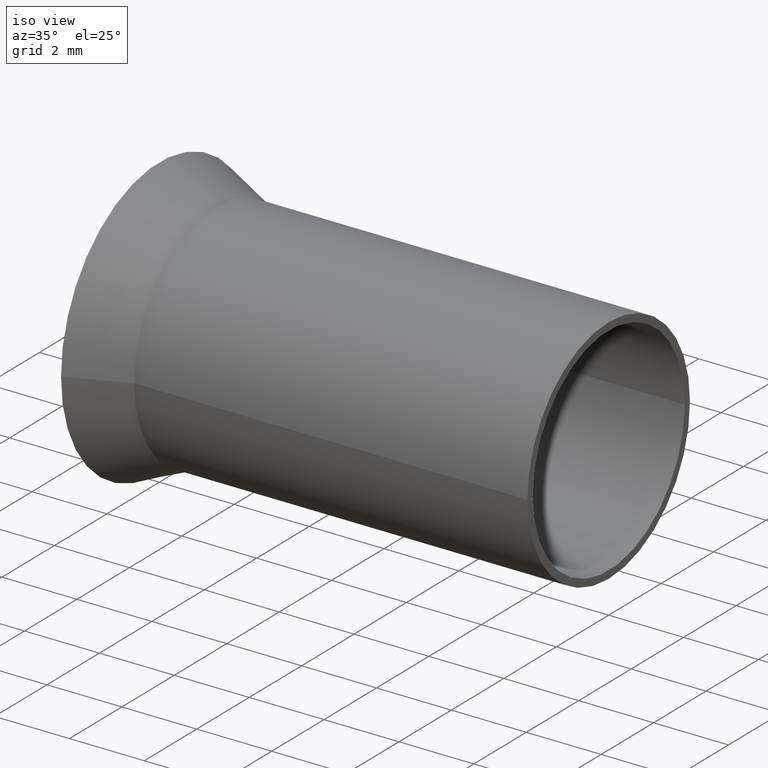
[diagram: clean part render]
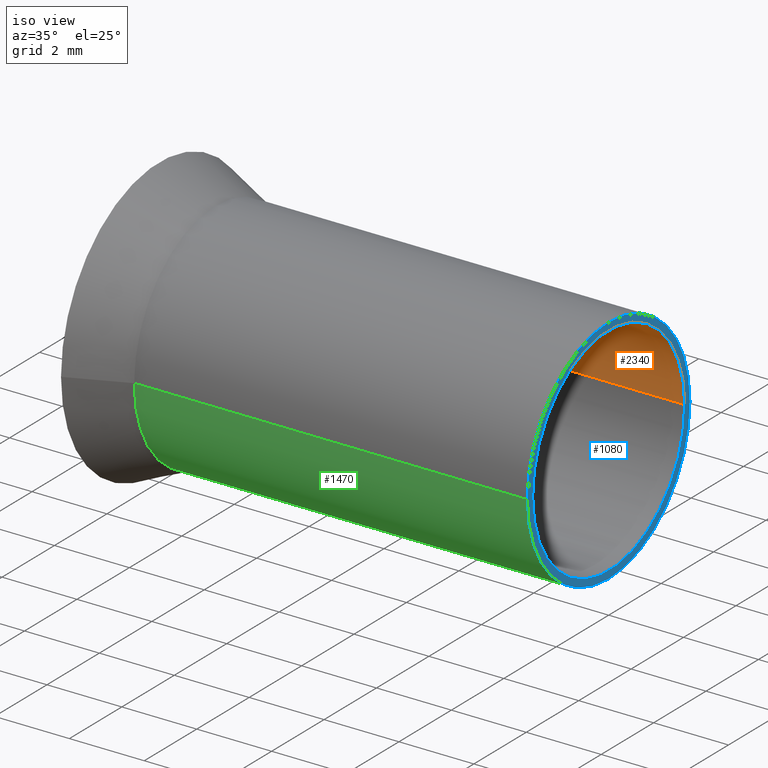
[diagram: same view with three faces highlighted in distinct colors, each labeled with its STEP entity id]
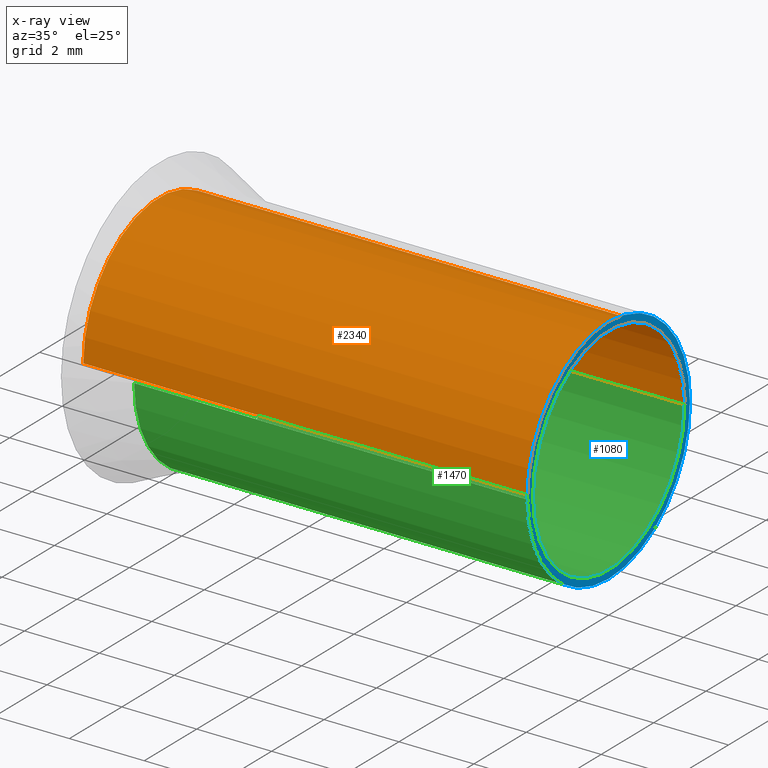
[diagram: x-ray of the same camera — body ghosted, the three highlighted faces saturated]
A machine part, iso view with three faces highlighted in distinct colors.
The next image is the same camera in x-ray (body ghosted, the three faces saturated) — at least one of them is partly hidden behind the body in this view.
Their STEP definitions:

[orange] entity #2340 — the highlighted cylindrical surface (partial cylindrical patch) has radius 2.9 mm, axis along (-1, 0, 0).
#60=CARTESIAN_POINT('',(0.,0.,0.));
#70=DIRECTION('',(1.,0.,0.));
#80=DIRECTION('',(0.,1.,0.));
#90=AXIS2_PLACEMENT_3D('',#60,#70,#80);
#100=CIRCLE('',#90,2.9);
#110=CARTESIAN_POINT('',(0.,2.9,0.));
#120=VERTEX_POINT('',#110);
#130=CARTESIAN_POINT('',(0.,-2.9,-3.55147571752732E-16));
#140=VERTEX_POINT('',#130);
#150=EDGE_CURVE('',#120,#140,#100,.T.);
#490=CARTESIAN_POINT('',(6.,-2.9,-3.55147571752732E-16));
#500=DIRECTION('',(-1.,0.,0.));
#510=VECTOR('',#500,1.);
#520=LINE('',#490,#510);
#530=CARTESIAN_POINT('',(12.,-2.9,-3.55147571752732E-16));
#540=VERTEX_POINT('',#530);
#550=EDGE_CURVE('',#540,#140,#520,.T.);
#580=CARTESIAN_POINT('',(6.,2.9,0.));
#590=DIRECTION('',(-1.,0.,0.));
#600=VECTOR('',#590,1.);
#610=LINE('',#580,#600);
#620=CARTESIAN_POINT('',(12.,2.9,0.));
#630=VERTEX_POINT('',#620);
#640=EDGE_CURVE('',#630,#120,#610,.T.);
#660=CARTESIAN_POINT('',(12.,0.,0.));
#670=DIRECTION('',(1.,0.,0.));
#680=DIRECTION('',(0.,1.,0.));
#690=AXIS2_PLACEMENT_3D('',#660,#670,#680);
#700=CIRCLE('',#690,2.9);
#1030=EDGE_CURVE('',#630,#540,#700,.T.);
#2230=CARTESIAN_POINT('',(6.,0.,0.));
#2240=DIRECTION('',(-1.,0.,0.));
#2250=DIRECTION('',(0.,1.,0.));
#2260=AXIS2_PLACEMENT_3D('',#2230,#2240,#2250);
#2270=CYLINDRICAL_SURFACE('',#2260,2.9);
#2280=ORIENTED_EDGE('',*,*,#150,.F.);
#2290=ORIENTED_EDGE('',*,*,#550,.T.);
#2300=ORIENTED_EDGE('',*,*,#1030,.T.);
#2310=ORIENTED_EDGE('',*,*,#640,.F.);
#2320=EDGE_LOOP('',(#2310,#2300,#2290,#2280));
#2330=FACE_OUTER_BOUND('',#2320,.T.);
#2340=ADVANCED_FACE('',(#2330),#2270,.F.);

[blue] entity #1080 — the highlighted planar face has unit normal (-1, 0, 0).
#530=CARTESIAN_POINT('',(12.,-2.9,-3.55147571752732E-16));
#540=VERTEX_POINT('',#530);
#620=CARTESIAN_POINT('',(12.,2.9,0.));
#630=VERTEX_POINT('',#620);
#660=CARTESIAN_POINT('',(12.,0.,0.));
#670=DIRECTION('',(1.,0.,0.));
#680=DIRECTION('',(0.,1.,0.));
#690=AXIS2_PLACEMENT_3D('',#660,#670,#680);
#700=CIRCLE('',#690,2.9);
#710=EDGE_CURVE('',#540,#630,#700,.T.);
#830=CARTESIAN_POINT('',(12.,3.,0.));
#840=DIRECTION('',(-1.,0.,0.));
#850=DIRECTION('',(0.,1.,0.));
#860=AXIS2_PLACEMENT_3D('',#830,#840,#850);
#870=PLANE('',#860);
#880=CARTESIAN_POINT('',(12.,0.,0.));
#890=DIRECTION('',(1.,0.,0.));
#900=DIRECTION('',(0.,1.,0.));
#910=AXIS2_PLACEMENT_3D('',#880,#890,#900);
#920=CIRCLE('',#910,3.1);
#930=CARTESIAN_POINT('',(12.,3.1,0.));
#940=VERTEX_POINT('',#930);
#950=CARTESIAN_POINT('',(12.,-3.1,-3.79640507735679E-16));
#960=VERTEX_POINT('',#950);
#970=EDGE_CURVE('',#940,#960,#920,.T.);
#980=ORIENTED_EDGE('',*,*,#970,.T.);
#990=EDGE_CURVE('',#960,#940,#920,.T.);
#1000=ORIENTED_EDGE('',*,*,#990,.T.);
#1010=EDGE_LOOP('',(#1000,#980));
#1020=FACE_OUTER_BOUND('',#1010,.T.);
#1030=EDGE_CURVE('',#630,#540,#700,.T.);
#1040=ORIENTED_EDGE('',*,*,#1030,.F.);
#1050=ORIENTED_EDGE('',*,*,#710,.F.);
#1060=EDGE_LOOP('',(#1050,#1040));
#1070=FACE_BOUND('',#1060,.T.);
#1080=ADVANCED_FACE('',(#1020,#1070),#870,.F.);

[green] entity #1470 — the highlighted cylindrical surface (partial cylindrical patch) has radius 3.1 mm, axis along (-1, 0, 0).
#880=CARTESIAN_POINT('',(12.,0.,0.));
#890=DIRECTION('',(1.,0.,0.));
#900=DIRECTION('',(0.,1.,0.));
#910=AXIS2_PLACEMENT_3D('',#880,#890,#900);
#920=CIRCLE('',#910,3.1);
#930=CARTESIAN_POINT('',(12.,3.1,0.));
#940=VERTEX_POINT('',#930);
#950=CARTESIAN_POINT('',(12.,-3.1,-3.79640507735679E-16));
#960=VERTEX_POINT('',#950);
#990=EDGE_CURVE('',#960,#940,#920,.T.);
#1160=CARTESIAN_POINT('',(6.75,0.,0.));
#1170=DIRECTION('',(-1.,0.,0.));
#1180=DIRECTION('',(0.,1.,0.));
#1190=AXIS2_PLACEMENT_3D('',#1160,#1170,#1180);
#1200=CYLINDRICAL_SURFACE('',#1190,3.1);
#1210=CARTESIAN_POINT('',(6.75,-3.1,-3.79640507735679E-16));
#1220=DIRECTION('',(-1.,0.,0.));
#1230=VECTOR('',#1220,1.);
#1240=LINE('',#1210,#1230);
#1250=CARTESIAN_POINT('',(1.5,-3.1,-3.79640507735679E-16));
#1260=VERTEX_POINT('',#1250);
#1270=EDGE_CURVE('',#960,#1260,#1240,.T.);
#1280=ORIENTED_EDGE('',*,*,#1270,.T.);
#1290=ORIENTED_EDGE('',*,*,#990,.F.);
#1300=CARTESIAN_POINT('',(6.75,3.1,0.));
#1310=DIRECTION('',(-1.,0.,0.));
#1320=VECTOR('',#1310,1.);
#1330=LINE('',#1300,#1320);
#1340=CARTESIAN_POINT('',(1.5,3.1,0.));
#1350=VERTEX_POINT('',#1340);
#1360=EDGE_CURVE('',#940,#1350,#1330,.T.);
#1370=ORIENTED_EDGE('',*,*,#1360,.F.);
#1380=CARTESIAN_POINT('',(1.5,0.,0.));
#1390=DIRECTION('',(1.,0.,0.));
#1400=DIRECTION('',(0.,1.,0.));
#1410=AXIS2_PLACEMENT_3D('',#1380,#1390,#1400);
#1420=CIRCLE('',#1410,3.1);
#1430=EDGE_CURVE('',#1260,#1350,#1420,.T.);
#1440=ORIENTED_EDGE('',*,*,#1430,.T.);
#1450=EDGE_LOOP('',(#1440,#1370,#1290,#1280));
#1460=FACE_OUTER_BOUND('',#1450,.T.);
#1470=ADVANCED_FACE('',(#1460),#1200,.T.);